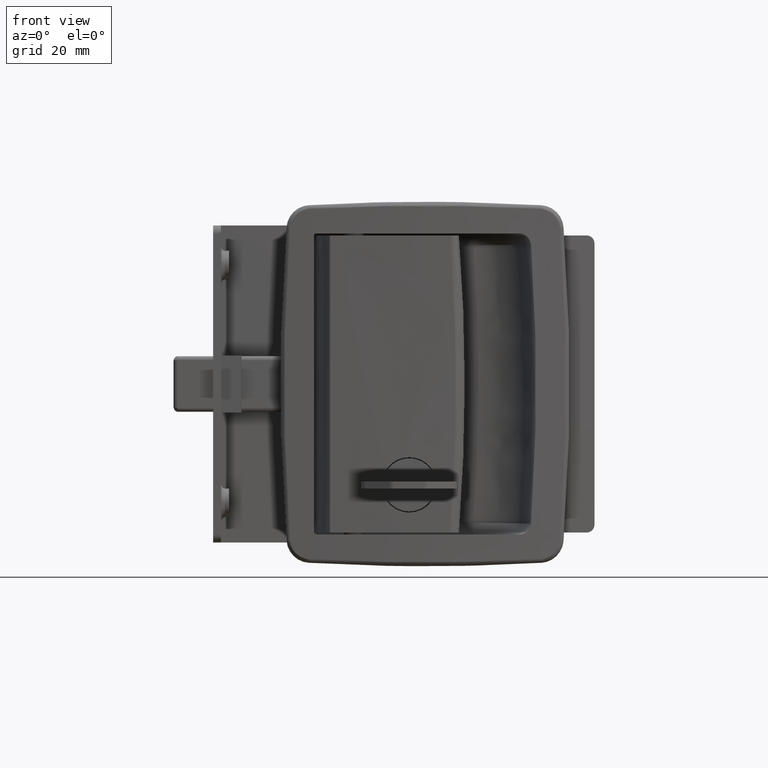
[diagram: clean part render]
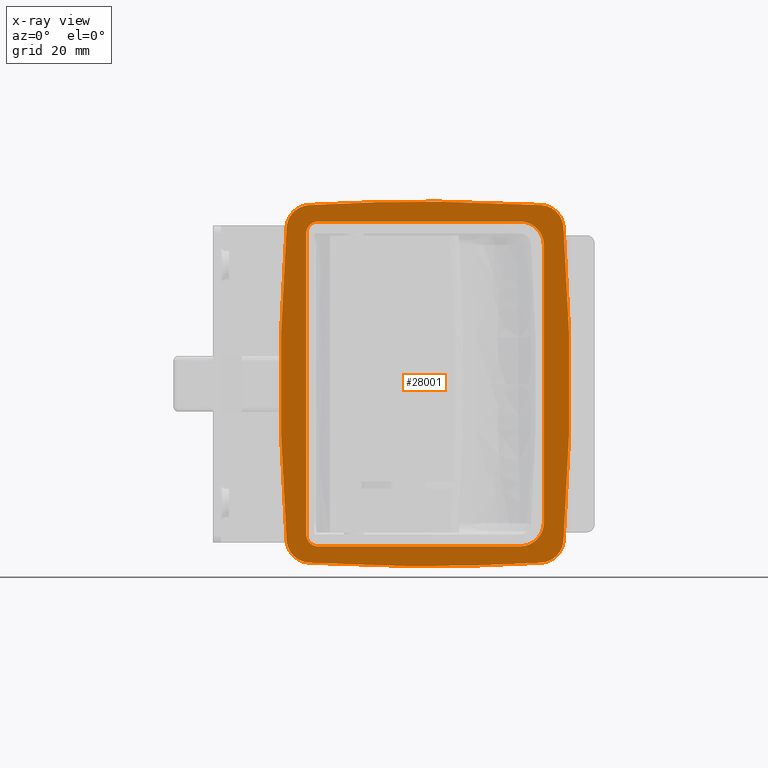
[diagram: x-ray — body ghosted, one internal face saturated and labeled with its STEP entity id]
A machine part, front view, then the same camera in x-ray: the body is ghosted and one INTERNAL B-rep face — a face not visible from any outside direction — is saturated and labeled: STEP entity #28001.
In plain terms, the highlighted face is a freeform B-spline surface patch.
Its self-contained STEP definition (entity closure, byte-faithful):
#23783=CARTESIAN_POINT('',(26.500000000435950,-28.999999999984500,41.000000000040650));
#23784=VERTEX_POINT('',#23783);
#23785=CARTESIAN_POINT('',(23.500000000435950,-28.999999999982151,38.000000000040650));
#23786=VERTEX_POINT('',#23785);
#23787=CARTESIAN_POINT('',(26.500000000435950,-28.999999999984500,41.000000000040650));
#23788=CARTESIAN_POINT('',(23.500000000435950,-29.000000000034454,41.000000000040643));
#23789=CARTESIAN_POINT('',(23.500000000435950,-28.999999999982151,38.000000000040650));
#23797=(BOUNDED_CURVE()B_SPLINE_CURVE(2,(#23787,#23788,#23789),.UNSPECIFIED.,.F.,.U.)CURVE()GEOMETRIC_REPRESENTATION_ITEM()QUASI_UNIFORM_CURVE()RATIONAL_B_SPLINE_CURVE((1.0,0.707106781186548,1.0))REPRESENTATION_ITEM(''));
#23798=EDGE_CURVE('',#23784,#23786,#23797,.T.);
#23871=CARTESIAN_POINT('',(23.500000000435950,-28.999999999982151,-37.999999999959400));
#23872=VERTEX_POINT('',#23871);
#23873=CARTESIAN_POINT('',(26.500000000435950,-28.999999999984500,-40.999999999959400));
#23874=VERTEX_POINT('',#23873);
#23875=CARTESIAN_POINT('',(23.500000000435950,-28.999999999982151,-37.999999999959400));
#23876=CARTESIAN_POINT('',(23.500000000435950,-29.000000000034454,-40.999999999959357));
#23877=CARTESIAN_POINT('',(26.500000000435950,-28.999999999984500,-40.999999999959400));
#23885=(BOUNDED_CURVE()B_SPLINE_CURVE(2,(#23875,#23876,#23877),.UNSPECIFIED.,.F.,.U.)CURVE()GEOMETRIC_REPRESENTATION_ITEM()QUASI_UNIFORM_CURVE()RATIONAL_B_SPLINE_CURVE((1.0,0.707106781186548,1.0))REPRESENTATION_ITEM(''));
#23886=EDGE_CURVE('',#23872,#23874,#23885,.T.);
#24005=CARTESIAN_POINT('',(83.498823489063511,-28.999999999999400,-35.000069031916453));
#24006=VERTEX_POINT('',#24005);
#24053=CARTESIAN_POINT('',(77.504007666291585,-29.000000000024599,-40.999999999959400));
#24054=VERTEX_POINT('',#24053);
#24055=CARTESIAN_POINT('',(77.504007666291585,-29.000000000024599,-40.999999999959400));
#24056=CARTESIAN_POINT('',(78.696385530543878,-29.000000000022091,-40.999999999959400));
#24057=CARTESIAN_POINT('',(79.798704403034364,-29.000000000018819,-40.542509151603653));
#24058=CARTESIAN_POINT('',(80.899232686788338,-29.000000000015550,-40.085761443894903));
#24059=CARTESIAN_POINT('',(81.741909571775778,-29.000000000012012,-39.242649630223042));
#24060=CARTESIAN_POINT('',(82.583959711706143,-29.000000000008470,-38.400164885088749));
#24061=CARTESIAN_POINT('',(83.040513507106340,-29.000000000005201,-37.299912462145713));
#24062=CARTESIAN_POINT('',(83.498778242130015,-29.000000000001911,-36.195536832944597));
#24063=CARTESIAN_POINT('',(83.498823489063511,-28.999999999999400,-35.000069031916453));
#24064=B_SPLINE_CURVE_WITH_KNOTS('',2,(#24055,#24056,#24057,#24058,#24059,#24060,#24061,#24062,#24063),.UNSPECIFIED.,.F.,.U.,(3,2,2,2,3),(0.0,0.250000000000000,0.500000000000000,0.750000000000000,1.0),.UNSPECIFIED.);
#24065=EDGE_CURVE('',#24054,#24006,#24064,.T.);
#24177=CARTESIAN_POINT('',(83.498823489063810,-29.000000000029349,35.000069031995508));
#24178=VERTEX_POINT('',#24177);
#24179=CARTESIAN_POINT('',(77.504007667632990,-29.000000000024599,41.000000000040650));
#24180=VERTEX_POINT('',#24179);
#24181=CARTESIAN_POINT('',(83.498823489063810,-29.000000000029349,35.000069031995508));
#24182=CARTESIAN_POINT('',(83.498778347026189,-29.000000000028880,36.192765380149801));
#24183=CARTESIAN_POINT('',(83.042555077253624,-29.000000000028258,37.294986286974350));
#24184=CARTESIAN_POINT('',(82.586761723596823,-29.000000000027640,38.396168530139349));
#24185=CARTESIAN_POINT('',(81.744905332507642,-29.000000000026979,39.239650205426699));
#24186=CARTESIAN_POINT('',(80.903220992951944,-29.000000000026311,40.082959497018649));
#24187=CARTESIAN_POINT('',(79.803615621814572,-29.000000000025690,40.540468314245402));
#24188=CARTESIAN_POINT('',(78.699148361552204,-29.000000000025072,41.000000000040650));
#24189=CARTESIAN_POINT('',(77.504007667632990,-29.000000000024599,41.000000000040650));
#24190=B_SPLINE_CURVE_WITH_KNOTS('',2,(#24181,#24182,#24183,#24184,#24185,#24186,#24187,#24188,#24189),.UNSPECIFIED.,.F.,.U.,(3,2,2,2,3),(0.0,0.250000000000000,0.500000000000000,0.750000000000000,1.0),.UNSPECIFIED.);
#24191=EDGE_CURVE('',#24178,#24180,#24190,.T.);
#27761=CARTESIAN_POINT('',(77.504007666291585,-29.000000000024599,-40.999999999959400));
#27762=CARTESIAN_POINT('',(26.500000000435950,-28.999999999984500,-40.999999999959400));
#27763=QUASI_UNIFORM_CURVE('',1,(#27761,#27762),.UNSPECIFIED.,.F.,.U.);
#27764=EDGE_CURVE('',#24054,#23874,#27763,.T.);
#27785=CARTESIAN_POINT('',(77.504007667632990,-29.000000000024599,41.000000000040650));
#27786=CARTESIAN_POINT('',(26.500000000435950,-28.999999999984500,41.000000000040650));
#27787=QUASI_UNIFORM_CURVE('',1,(#27785,#27786),.UNSPECIFIED.,.F.,.U.);
#27788=EDGE_CURVE('',#24180,#23784,#27787,.T.);
#27805=CARTESIAN_POINT('',(83.498823489063810,-29.000000000029349,35.000069031995508));
#27806=CARTESIAN_POINT('',(83.498823489063511,-28.999999999999400,-35.000069031916453));
#27807=QUASI_UNIFORM_CURVE('',1,(#27805,#27806),.UNSPECIFIED.,.F.,.U.);
#27808=EDGE_CURVE('',#24178,#24006,#27807,.T.);
#27825=CARTESIAN_POINT('',(23.500000000435950,-28.999999999982151,38.000000000040650));
#27826=CARTESIAN_POINT('',(23.500000000435950,-28.999999999982151,-37.999999999959400));
#27827=QUASI_UNIFORM_CURVE('',1,(#27825,#27826),.UNSPECIFIED.,.F.,.U.);
#27828=EDGE_CURVE('',#23786,#23872,#27827,.T.);
#27864=CARTESIAN_POINT('',(13.353650141634020,-29.000000000034451,50.595399821543303));
#27865=CARTESIAN_POINT('',(93.646351816670261,-29.000000000034451,50.595399821543303));
#27866=CARTESIAN_POINT('',(13.353650141634020,-29.000000000034451,-50.595402289460708));
#27867=CARTESIAN_POINT('',(93.646351816670261,-29.000000000034451,-50.595402289460708));
#27868=B_SPLINE_SURFACE_WITH_KNOTS('',1,1,((#27864,#27866),(#27865,#27867)),.UNSPECIFIED.,.F.,.F.,.U.,(2,2),(2,2),(0.0,80.292701675036241),(0.0,101.190802111004000),.UNSPECIFIED.);
#27869=CARTESIAN_POINT('',(82.824502115653402,-29.000000000034550,45.139332827553602));
#27870=VERTEX_POINT('',#27869);
#27871=CARTESIAN_POINT('',(24.175497884642802,-29.000000000034550,45.139332827553602));
#27872=VERTEX_POINT('',#27871);
#27873=CARTESIAN_POINT('',(82.824502115653402,-29.000000000034550,45.139332827553602));
#27874=CARTESIAN_POINT('',(53.500000000148610,-29.000000000034554,46.862151222670846));
#27875=CARTESIAN_POINT('',(24.175497884642802,-29.000000000034550,45.139332827553602));
#27883=(BOUNDED_CURVE()B_SPLINE_CURVE(2,(#27873,#27874,#27875),.UNSPECIFIED.,.F.,.U.)CURVE()GEOMETRIC_REPRESENTATION_ITEM()QUASI_UNIFORM_CURVE()RATIONAL_B_SPLINE_CURVE((1.0,0.998278665655392,1.0))REPRESENTATION_ITEM(''));
#27884=EDGE_CURVE('',#27870,#27872,#27883,.T.);
#27885=ORIENTED_EDGE('',*,*,#27884,.F.);
#27886=CARTESIAN_POINT('',(88.454370574925093,-29.000000000034550,39.617119470443697));
#27887=VERTEX_POINT('',#27886);
#27888=CARTESIAN_POINT('',(88.454370574925264,-29.000000000034550,39.617119470443711));
#27889=CARTESIAN_POINT('',(88.046800899483614,-29.000000000034557,44.832522080208513));
#27890=CARTESIAN_POINT('',(82.824502115653402,-29.000000000034550,45.139332827553623));
#27898=(BOUNDED_CURVE()B_SPLINE_CURVE(2,(#27888,#27889,#27890),.UNSPECIFIED.,.F.,.U.)CURVE()GEOMETRIC_REPRESENTATION_ITEM()QUASI_UNIFORM_CURVE()RATIONAL_B_SPLINE_CURVE((1.0,0.753739477399615,1.0))REPRESENTATION_ITEM(''));
#27899=EDGE_CURVE('',#27887,#27870,#27898,.T.);
#27900=ORIENTED_EDGE('',*,*,#27899,.F.);
#27901=CARTESIAN_POINT('',(88.454370574890504,-29.000000000034550,-39.617119470732149));
#27902=VERTEX_POINT('',#27901);
#27903=CARTESIAN_POINT('',(88.454370574890504,-29.000000000034550,-39.617119470732149));
#27904=CARTESIAN_POINT('',(91.550341822512308,-29.000000000034554,-1.457610E-010));
#27905=CARTESIAN_POINT('',(88.454370574925221,-29.000000000034550,39.617119470443633));
#27913=(BOUNDED_CURVE()B_SPLINE_CURVE(2,(#27903,#27904,#27905),.UNSPECIFIED.,.F.,.U.)CURVE()GEOMETRIC_REPRESENTATION_ITEM()QUASI_UNIFORM_CURVE()RATIONAL_B_SPLINE_CURVE((1.0,0.996960414109660,1.0))REPRESENTATION_ITEM(''));
#27914=EDGE_CURVE('',#27902,#27887,#27913,.T.);
#27915=ORIENTED_EDGE('',*,*,#27914,.F.);
#27916=CARTESIAN_POINT('',(82.824502115619012,-29.000000000034550,-45.139332827840697));
#27917=VERTEX_POINT('',#27916);
#27918=CARTESIAN_POINT('',(82.824502115619012,-29.000000000034550,-45.139332827840697));
#27919=CARTESIAN_POINT('',(88.046800899447945,-29.000000000034561,-44.832522080495572));
#27920=CARTESIAN_POINT('',(88.454370574890461,-29.000000000034550,-39.617119470732149));
#27928=(BOUNDED_CURVE()B_SPLINE_CURVE(2,(#27918,#27919,#27920),.UNSPECIFIED.,.F.,.U.)CURVE()GEOMETRIC_REPRESENTATION_ITEM()QUASI_UNIFORM_CURVE()RATIONAL_B_SPLINE_CURVE((1.0,0.753739477399696,1.0))REPRESENTATION_ITEM(''));
#27929=EDGE_CURVE('',#27917,#27902,#27928,.T.);
#27930=ORIENTED_EDGE('',*,*,#27929,.F.);
#27931=CARTESIAN_POINT('',(24.175497884668602,-29.000000000034550,-45.139332827840398));
#27932=VERTEX_POINT('',#27931);
#27933=CARTESIAN_POINT('',(24.175497884668602,-29.000000000034550,-45.139332827840398));
#27934=CARTESIAN_POINT('',(53.500000000143835,-29.000000000034554,-46.862151222954118));
#27935=CARTESIAN_POINT('',(82.824502115619012,-29.000000000034550,-45.139332827840697));
#27943=(BOUNDED_CURVE()B_SPLINE_CURVE(2,(#27933,#27934,#27935),.UNSPECIFIED.,.F.,.U.)CURVE()GEOMETRIC_REPRESENTATION_ITEM()QUASI_UNIFORM_CURVE()RATIONAL_B_SPLINE_CURVE((1.0,0.998278665655396,1.0))REPRESENTATION_ITEM(''));
#27944=EDGE_CURVE('',#27932,#27917,#27943,.T.);
#27945=ORIENTED_EDGE('',*,*,#27944,.F.);
#27946=CARTESIAN_POINT('',(18.545629425395749,-29.000000000034550,-39.617119470722699));
#27947=VERTEX_POINT('',#27946);
#27948=CARTESIAN_POINT('',(18.545629425395891,-29.000000000034550,-39.617119470722692));
#27949=CARTESIAN_POINT('',(18.953199100831256,-29.000000000034539,-44.832522080495110));
#27950=CARTESIAN_POINT('',(24.175497884668602,-29.000000000034550,-45.139332827840427));
#27958=(BOUNDED_CURVE()B_SPLINE_CURVE(2,(#27948,#27949,#27950),.UNSPECIFIED.,.F.,.U.)CURVE()GEOMETRIC_REPRESENTATION_ITEM()QUASI_UNIFORM_CURVE()RATIONAL_B_SPLINE_CURVE((1.0,0.753739477399172,1.0))REPRESENTATION_ITEM(''));
#27959=EDGE_CURVE('',#27947,#27932,#27958,.T.);
#27960=ORIENTED_EDGE('',*,*,#27959,.F.);
#27961=CARTESIAN_POINT('',(18.545629425370748,-29.000000000034550,39.617119470440450));
#27962=VERTEX_POINT('',#27961);
#27963=CARTESIAN_POINT('',(18.545629425370748,-29.000000000034550,39.617119470440450));
#27964=CARTESIAN_POINT('',(15.449658177779993,-29.000000000034550,-1.424231E-010));
#27965=CARTESIAN_POINT('',(18.545629425395749,-29.000000000034550,-39.617119470722699));
#27973=(BOUNDED_CURVE()B_SPLINE_CURVE(2,(#27963,#27964,#27965),.UNSPECIFIED.,.F.,.U.)CURVE()GEOMETRIC_REPRESENTATION_ITEM()QUASI_UNIFORM_CURVE()RATIONAL_B_SPLINE_CURVE((1.0,0.996960414109661,1.0))REPRESENTATION_ITEM(''));
#27974=EDGE_CURVE('',#27962,#27947,#27973,.T.);
#27975=ORIENTED_EDGE('',*,*,#27974,.F.);
#27976=CARTESIAN_POINT('',(24.175497884642802,-29.000000000034550,45.139332827553609));
#27977=CARTESIAN_POINT('',(18.953199100809755,-29.000000000034547,44.832522080208292));
#27978=CARTESIAN_POINT('',(18.545629425370748,-29.000000000034550,39.617119470440450));
#27986=(BOUNDED_CURVE()B_SPLINE_CURVE(2,(#27976,#27977,#27978),.UNSPECIFIED.,.F.,.U.)CURVE()GEOMETRIC_REPRESENTATION_ITEM()QUASI_UNIFORM_CURVE()RATIONAL_B_SPLINE_CURVE((1.0,0.753739477399439,1.0))REPRESENTATION_ITEM(''));
#27987=EDGE_CURVE('',#27872,#27962,#27986,.T.);
#27988=ORIENTED_EDGE('',*,*,#27987,.F.);
#27989=EDGE_LOOP('',(#27885,#27900,#27915,#27930,#27945,#27960,#27975,#27988));
#27990=FACE_OUTER_BOUND('',#27989,.T.);
#27991=ORIENTED_EDGE('',*,*,#27808,.F.);
#27992=ORIENTED_EDGE('',*,*,#24191,.T.);
#27993=ORIENTED_EDGE('',*,*,#27788,.T.);
#27994=ORIENTED_EDGE('',*,*,#23798,.T.);
#27995=ORIENTED_EDGE('',*,*,#27828,.T.);
#27996=ORIENTED_EDGE('',*,*,#23886,.T.);
#27997=ORIENTED_EDGE('',*,*,#27764,.F.);
#27998=ORIENTED_EDGE('',*,*,#24065,.T.);
#27999=EDGE_LOOP('',(#27991,#27992,#27993,#27994,#27995,#27996,#27997,#27998));
#28000=FACE_BOUND('',#27999,.T.);
#28001=ADVANCED_FACE('',(#27990,#28000),#27868,.T.);